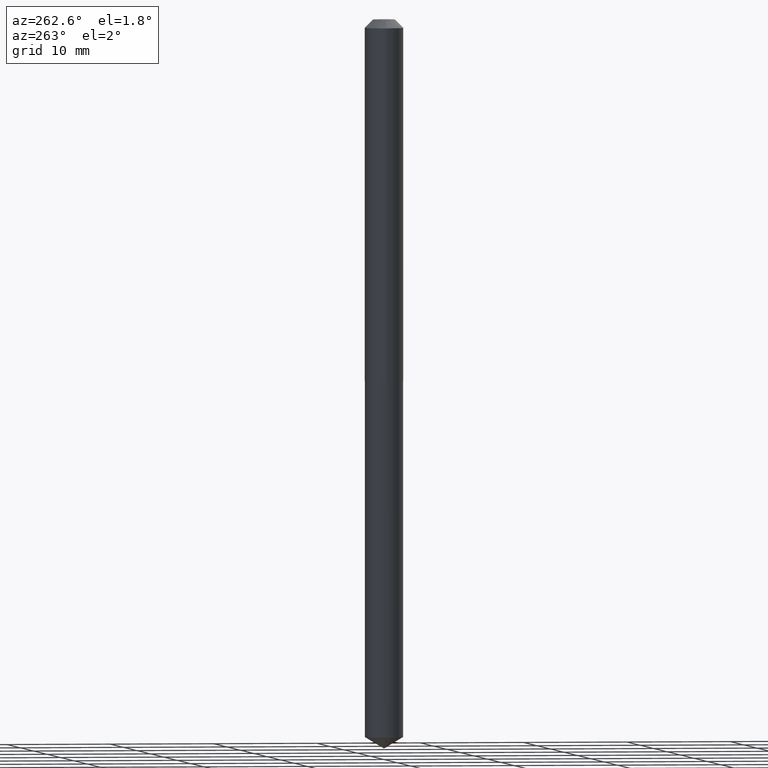
[diagram: clean part render]
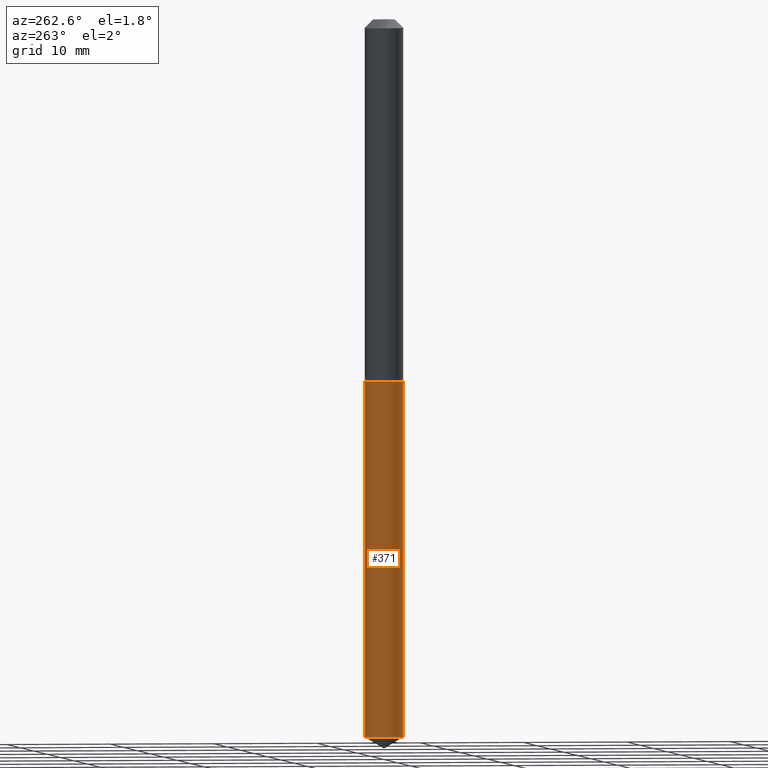
[diagram: same view with one face highlighted and labeled with its STEP entity id]
A machine part, auxiliary view. The second image highlights one B-rep face of the part: STEP entity #371.
In plain terms, the highlighted cylindrical surface (edge-blend (fillet) strip) has radius 1.8504 mm, axis along (-0, 0, 1).
Its self-contained STEP definition (entity closure, byte-faithful):
#19 = DIRECTION ( 'NONE',  ( -6.982962677686265922E-15, -1.000000000000000000, 3.749962928845934523E-15 ) ) ;
#60 = AXIS2_PLACEMENT_3D ( 'NONE', #161, #379, #117 ) ;
#77 = EDGE_CURVE ( 'NONE', #231, #227, #280, .T. ) ;
#86 = CARTESIAN_POINT ( 'NONE',  ( 3.340999483010132766E-29, -4.770061805127504889E-15, -1.366199999999999859 ) ) ;
#87 = AXIS2_PLACEMENT_3D ( 'NONE', #86, #206, #19 ) ;
#103 = AXIS2_PLACEMENT_3D ( 'NONE', #157, #329, #122 ) ;
#108 = ORIENTED_EDGE ( 'NONE', *, *, #218, .T. ) ;
#112 = DIRECTION ( 'NONE',  ( -2.445528388085863284E-29, 3.491396014170113419E-15, 1.000000000000000000 ) ) ;
#117 = DIRECTION ( 'NONE',  ( -6.982962677686265922E-15, -1.000000000000000000, 3.749962928845934523E-15 ) ) ;
#121 = LINE ( 'NONE', #338, #325 ) ;
#122 = DIRECTION ( 'NONE',  ( -6.982962677686265133E-15, -1.000000000000000000, 0.000000000000000000 ) ) ;
#132 = CIRCLE ( 'NONE', #103, 0.07285000000000001197 ) ;
#157 = CARTESIAN_POINT ( 'NONE',  ( 6.632502913006848592E-29, -9.469227029340106795E-15, -2.712127303903842268 ) ) ;
#160 = FACE_OUTER_BOUND ( 'NONE', #250, .T. ) ;
#161 = CARTESIAN_POINT ( 'NONE',  ( 3.340999483010132766E-29, -4.770061805127504889E-15, -1.366199999999999859 ) ) ;
#166 = VERTEX_POINT ( 'NONE', #335 ) ;
#190 = VECTOR ( 'NONE', #112, 39.37007874015748143 ) ;
#206 = DIRECTION ( 'NONE',  ( -2.445528388085863284E-29, 3.491396014170113419E-15, 1.000000000000000000 ) ) ;
#218 = EDGE_CURVE ( 'NONE', #231, #373, #132, .T. ) ;
#221 = ORIENTED_EDGE ( 'NONE', *, *, #77, .F. ) ;
#227 = VERTEX_POINT ( 'NONE', #357 ) ;
#231 = VERTEX_POINT ( 'NONE', #300 ) ;
#237 = DIRECTION ( 'NONE',  ( -2.445528388085863284E-29, 3.491396014170113419E-15, 1.000000000000000000 ) ) ;
#240 = EDGE_CURVE ( 'NONE', #373, #166, #121, .T. ) ;
#250 = EDGE_LOOP ( 'NONE', ( #221, #108, #346, #378 ) ) ;
#265 = CARTESIAN_POINT ( 'NONE',  ( -5.087088310693781180E-16, -0.07285000000000946274, -2.712127303903842268 ) ) ;
#275 = EDGE_CURVE ( 'NONE', #227, #166, #310, .T. ) ;
#280 = LINE ( 'NONE', #372, #190 ) ;
#300 = CARTESIAN_POINT ( 'NONE',  ( 5.176303830012991375E-16, 0.07284999999999051956, -2.712127303903842268 ) ) ;
#310 = CIRCLE ( 'NONE', #60, 0.07284999999999999809 ) ;
#325 = VECTOR ( 'NONE', #237, 39.37007874015748143 ) ;
#329 = DIRECTION ( 'NONE',  ( -2.445528388085863284E-29, 3.491396014170113419E-15, 1.000000000000000000 ) ) ;
#335 = CARTESIAN_POINT ( 'NONE',  ( -5.087088310694110530E-16, -0.07285000000000477205, -1.366199999999999415 ) ) ;
#338 = CARTESIAN_POINT ( 'NONE',  ( -5.087088310694110530E-16, -0.07285000000000477205, -1.366199999999999415 ) ) ;
#346 = ORIENTED_EDGE ( 'NONE', *, *, #240, .T. ) ;
#357 = CARTESIAN_POINT ( 'NONE',  ( 5.176303830012994334E-16, 0.07284999999999522413, -1.366200000000000081 ) ) ;
#371 = ADVANCED_FACE ( 'NONE', ( #160 ), #387, .T. ) ;
#372 = CARTESIAN_POINT ( 'NONE',  ( 5.176303830012663012E-16, 0.07284999999999522413, -1.366200000000000081 ) ) ;
#373 = VERTEX_POINT ( 'NONE', #265 ) ;
#378 = ORIENTED_EDGE ( 'NONE', *, *, #275, .F. ) ;
#379 = DIRECTION ( 'NONE',  ( -2.445528388085863284E-29, 3.491396014170113419E-15, 1.000000000000000000 ) ) ;
#387 = CYLINDRICAL_SURFACE ( 'NONE', #87, 0.07284999999999999809 ) ;